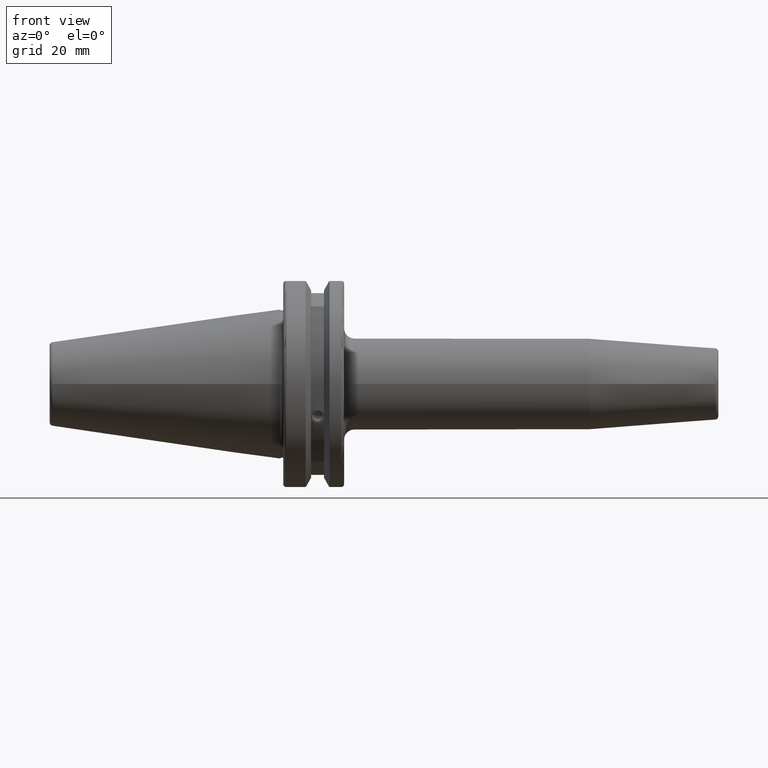
[diagram: clean part render]
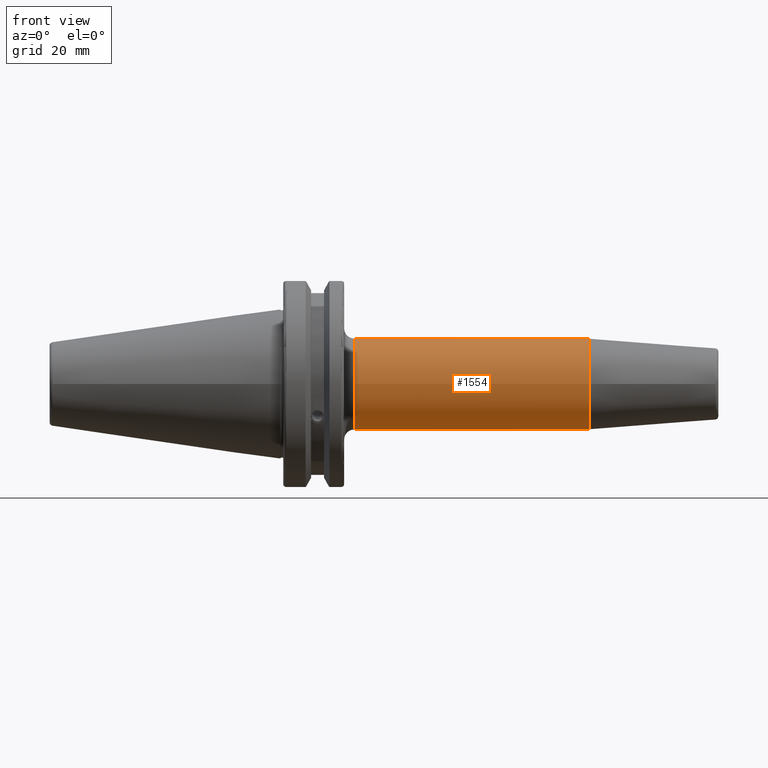
[diagram: same view with one face highlighted and labeled with its STEP entity id]
A machine part, front view. The second image highlights one B-rep face of the part: STEP entity #1554.
In plain terms, the highlighted cylindrical surface (bore or boss wall) has radius 13.5 mm, axis along (1, 0, 0).
Its self-contained STEP definition (entity closure, byte-faithful):
#149=CYLINDRICAL_SURFACE('',#1682,13.5);
#185=FACE_OUTER_BOUND('',#279,.T.);
#279=EDGE_LOOP('',(#1082,#1083,#1084,#1085,#1086));
#382=LINE('',#2361,#480);
#480=VECTOR('',#1899,13.5);
#579=CIRCLE('',#1674,13.5);
#581=CIRCLE('',#1678,13.5);
#584=CIRCLE('',#1681,13.5);
#657=VERTEX_POINT('',#2346);
#659=VERTEX_POINT('',#2353);
#660=VERTEX_POINT('',#2354);
#821=EDGE_CURVE('',#657,#657,#579,.T.);
#823=EDGE_CURVE('',#659,#660,#581,.T.);
#826=EDGE_CURVE('',#660,#659,#584,.T.);
#827=EDGE_CURVE('',#657,#659,#382,.T.);
#1082=ORIENTED_EDGE('',*,*,#821,.F.);
#1083=ORIENTED_EDGE('',*,*,#827,.T.);
#1084=ORIENTED_EDGE('',*,*,#826,.F.);
#1085=ORIENTED_EDGE('',*,*,#823,.F.);
#1086=ORIENTED_EDGE('',*,*,#827,.F.);
#1554=ADVANCED_FACE('',(#185),#149,.T.);
#1674=AXIS2_PLACEMENT_3D('',#2348,#1881,#1882);
#1678=AXIS2_PLACEMENT_3D('',#2355,#1889,#1890);
#1681=AXIS2_PLACEMENT_3D('',#2359,#1895,#1896);
#1682=AXIS2_PLACEMENT_3D('',#2360,#1897,#1898);
#1881=DIRECTION('center_axis',(1.,0.,0.));
#1882=DIRECTION('ref_axis',(0.,0.,-1.));
#1889=DIRECTION('center_axis',(-1.,0.,0.));
#1890=DIRECTION('ref_axis',(0.,-1.,-1.22464679914735E-16));
#1895=DIRECTION('center_axis',(-1.,0.,0.));
#1896=DIRECTION('ref_axis',(0.,-1.,-1.22464679914735E-16));
#1897=DIRECTION('center_axis',(1.,0.,0.));
#1898=DIRECTION('ref_axis',(0.,1.,0.));
#1899=DIRECTION('',(-1.,0.,0.));
#2346=CARTESIAN_POINT('',(91.8813857914759,-13.5,-1.65327317884893E-15));
#2348=CARTESIAN_POINT('Origin',(91.8813857914759,0.,0.));
#2353=CARTESIAN_POINT('',(22.05,-13.5,-1.65327317884893E-15));
#2354=CARTESIAN_POINT('',(22.05,-1.65327317884893E-15,-13.5));
#2355=CARTESIAN_POINT('Origin',(22.05,0.,0.));
#2359=CARTESIAN_POINT('Origin',(22.05,0.,0.));
#2360=CARTESIAN_POINT('Origin',(55.4656928957379,0.,0.));
#2361=CARTESIAN_POINT('',(55.4656928957379,-13.5,-1.65327317884893E-15));